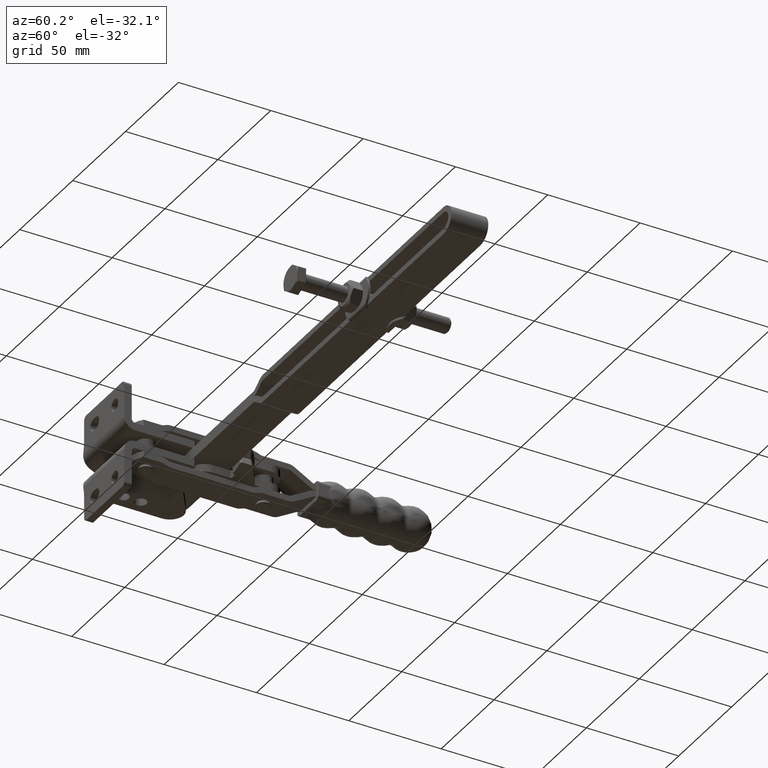
[diagram: clean part render]
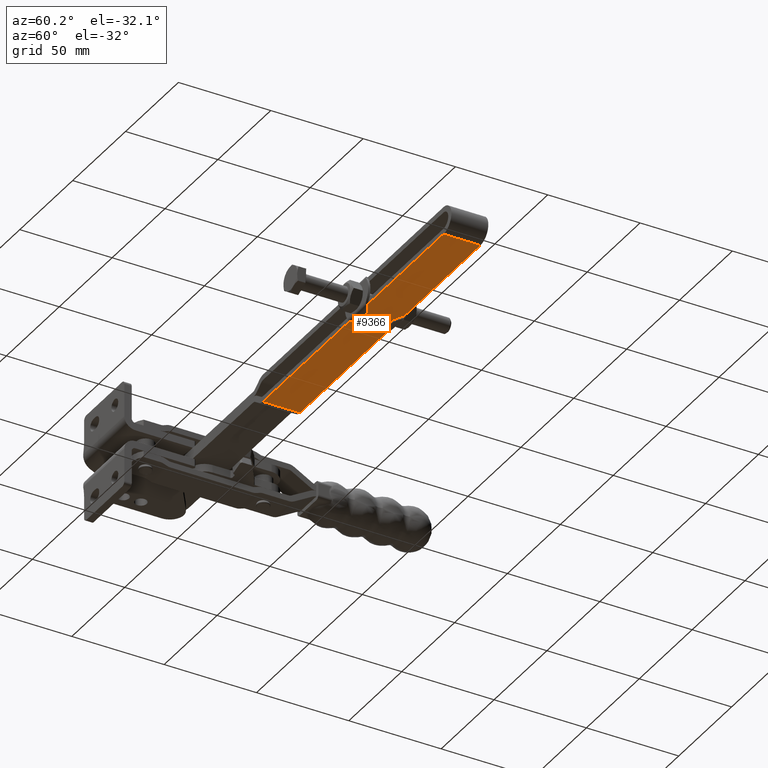
[diagram: same view with one face highlighted and labeled with its STEP entity id]
A machine part, auxiliary view. The second image highlights one B-rep face of the part: STEP entity #9366.
In plain terms, the highlighted planar face has unit normal (0, 0, -1).
Its self-contained STEP definition (entity closure, byte-faithful):
#9257=CARTESIAN_POINT('',(258.61482778064988,65.897780910495214,-4.500435521979486));
#9258=VERTEX_POINT('',#9257);
#9276=CARTESIAN_POINT('',(258.6156504120483,45.897780927413265,-4.500435521979486));
#9277=VERTEX_POINT('',#9276);
#9285=CARTESIAN_POINT('',(258.61482778064982,65.897780910495214,-4.500435521979486));
#9286=DIRECTION('',(0.000041131569924,-0.999999999154097,0.0));
#9287=VECTOR('',#9286,19.999999999999996);
#9288=LINE('',#9285,#9287);
#9289=EDGE_CURVE('',#9258,#9277,#9288,.T.);
#9336=CARTESIAN_POINT('',(490.91167793916929,55.907335636179951,-4.500435521979509));
#9337=DIRECTION('',(0.0,0.0,-1.0));
#9338=DIRECTION('',(-0.999999999154097,-0.000041131569925,0.0));
#9339=AXIS2_PLACEMENT_3D('',#9336,#9337,#9338);
#9340=PLANE('',#9339);
#9341=ORIENTED_EDGE('',*,*,#9289,.T.);
#9342=CARTESIAN_POINT('',(88.014154092814266,45.890763820032134,-4.500435521979469));
#9343=VERTEX_POINT('',#9342);
#9344=CARTESIAN_POINT('',(88.014154092814351,45.890763820032141,-4.500435521979469));
#9345=DIRECTION('',(0.999999999154097,0.000041131569925,-9.891701E-017));
#9346=VECTOR('',#9345,170.60149646354631);
#9347=LINE('',#9344,#9346);
#9348=EDGE_CURVE('',#9343,#9277,#9347,.T.);
#9349=ORIENTED_EDGE('',*,*,#9348,.F.);
#9350=CARTESIAN_POINT('',(88.013331461415817,65.890763803114083,-4.500435521979469));
#9351=VERTEX_POINT('',#9350);
#9352=CARTESIAN_POINT('',(88.014154092814266,45.890763820032149,-4.500435521979469));
#9353=DIRECTION('',(-0.000041131569925,0.999999999154097,0.0));
#9354=VECTOR('',#9353,19.999999999999996);
#9355=LINE('',#9352,#9354);
#9356=EDGE_CURVE('',#9343,#9351,#9355,.T.);
#9357=ORIENTED_EDGE('',*,*,#9356,.T.);
#9358=CARTESIAN_POINT('',(88.013331461415845,65.890763803114083,-4.500435521979469));
#9359=DIRECTION('',(0.999999999154097,0.000041131569925,-9.891701E-017));
#9360=VECTOR('',#9359,170.60149646354634);
#9361=LINE('',#9358,#9360);
#9362=EDGE_CURVE('',#9351,#9258,#9361,.T.);
#9363=ORIENTED_EDGE('',*,*,#9362,.T.);
#9364=EDGE_LOOP('',(#9341,#9349,#9357,#9363));
#9365=FACE_OUTER_BOUND('',#9364,.T.);
#9366=ADVANCED_FACE('',(#9365),#9340,.T.);